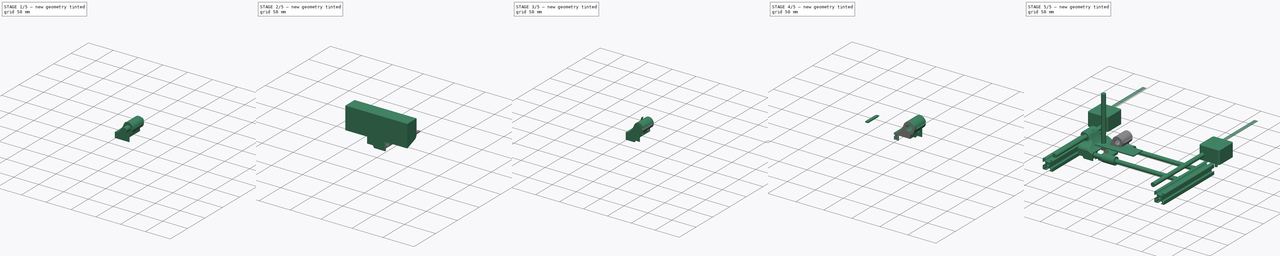
[diagram: build sequence overview — one tinted view per stage of 5, left to right]
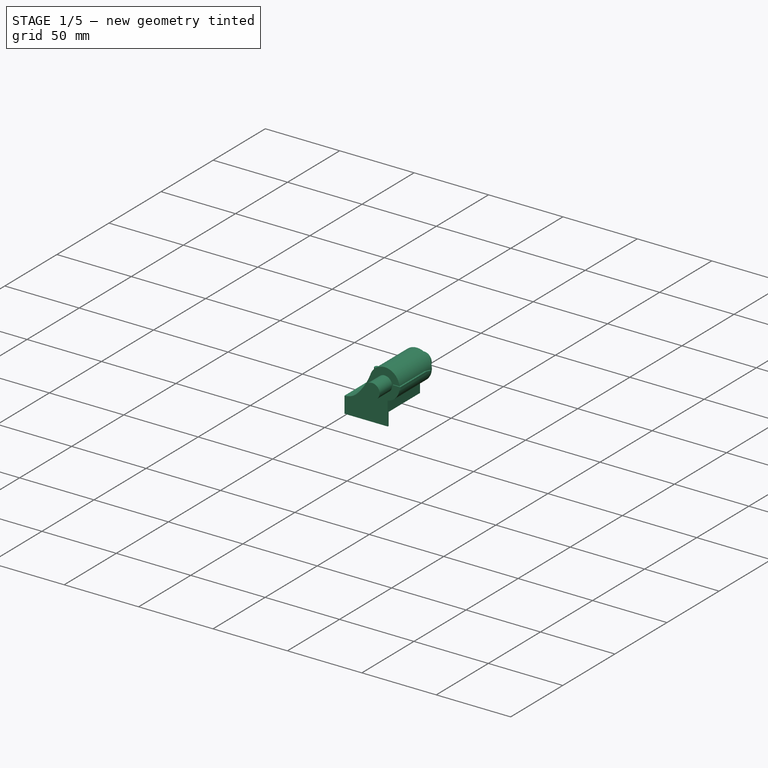
[diagram: stage 1 of 5 — iso view after this stage's code; geometry added in this stage tinted green]
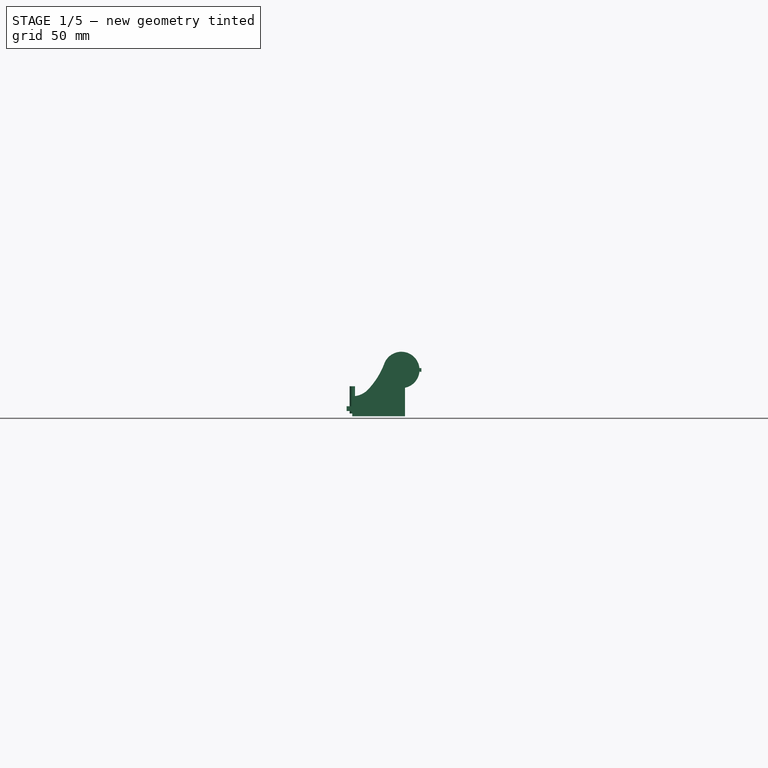
[diagram: stage 1 of 5 — front view after this stage's code; geometry added in this stage tinted green]
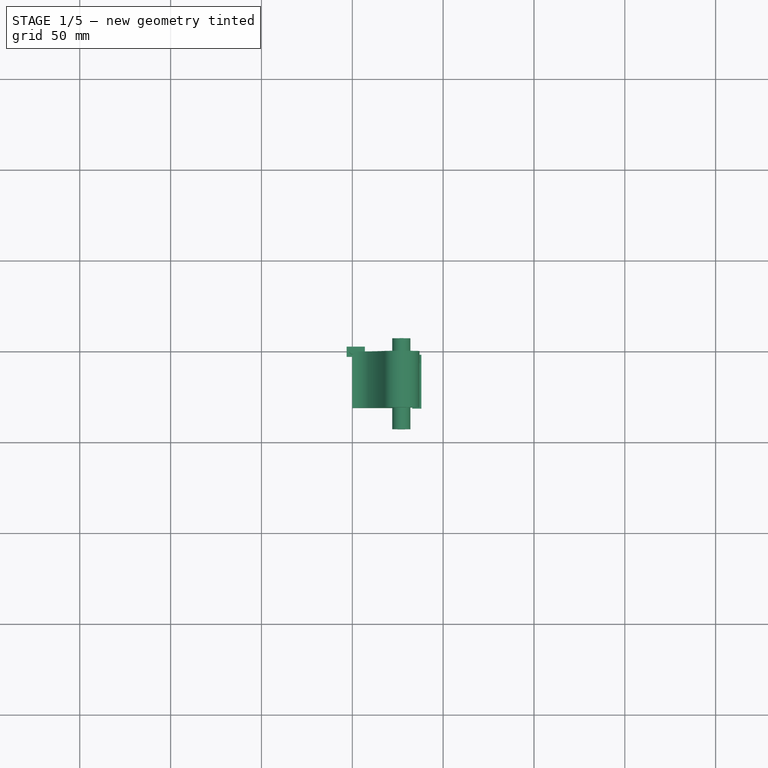
[diagram: stage 1 of 5 — top view after this stage's code; geometry added in this stage tinted green]
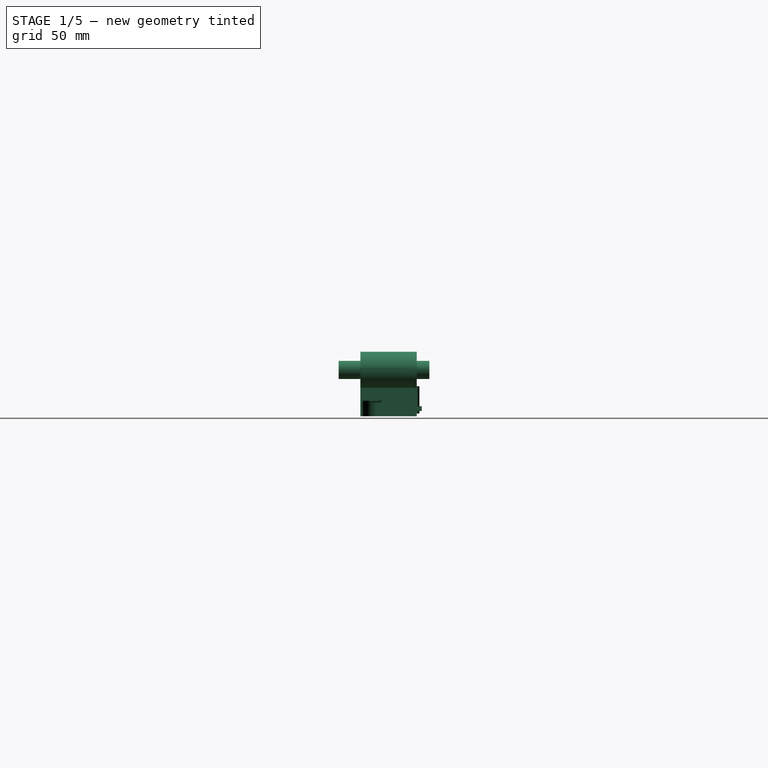
[diagram: stage 1 of 5 — right view after this stage's code; geometry added in this stage tinted green]
FCSTD DOCUMENT  (FreeCAD 0.16R6698 (Git))
Label: Ycarriage
License: All rights reserved
LicenseURL: http://en.wikipedia.org/wiki/All_rights_reserved
objects: Part::Feature×27, Part::Cut×12, Sketcher::SketchObject×11, Part::FeaturePython×10, Part::Mirroring×5, PartDesign::Pad×4, Part::Chamfer×4, Part::Extrusion×4, App::DocumentObjectGroup×4, Part::Offset×3, Part::MultiFuse×3, PartDesign::Pocket×3, Part::Cylinder×3, Part::Compound×2, Part::Fillet×2, Part::Box×1, Spreadsheet::Sheet×1
note: 101 computed .brp shape members not serialized (recipe doc carries the construction recipe); baked Part::Feature solids carry a one-line shape summary decoded from their .brp

FEATURE [Part::Feature] Part__Mirroring002001  label="4018X SNGL (Mirror #3)001"
  shape: bbox 40.13 x 132.8 x 41.15 mm, 30 faces (baked)
FEATURE [Part::Feature] Part__Mirroring009001  label="T slot extrusion 20x20x140.001 (Mirror #2)001"
  shape: bbox 20 x 140 x 20 mm, 51 faces (baked)
FEATURE [Part::Feature] Part__Mirroring004001  label="YBar (Mirror #5)001"
  shape: bbox 8 x 140 x 8 mm, 3 faces (baked)
FEATURE [Part::Feature] Part__Mirroring008001  label="LM8UU001 (Mirror #7)001"
  Placement = pos=(0,30,0) rot=(0,0,1;0rad)
  shape: bbox 15 x 24 x 15 mm, 3 faces (baked)
FEATURE [Part::Feature] Cylinder004001  label="623ZZ001"
  Placement = pos=(-2,30,0) rot=(0,0,1;0rad)
  shape: bbox 10 x 10 x 4 mm, 3 faces (baked)
FEATURE [Part::Feature] Part__Mirroring007001  label="623ZZ (Mirror #8)001"
  Placement = pos=(-2,30,0) rot=(0,0,1;0rad)
  shape: bbox 10 x 10 x 4 mm, 3 faces (baked)
FEATURE [Part::Feature] Cylinder002001  label="LM8UU001"
  Placement = pos=(40,30,0) rot=(0,0,1;0rad)
  shape: bbox 24 x 15 x 15 mm, 3 faces (baked)
FEATURE [Part::Feature] Part__Mirroring006001  label="LM8UU (Mirror #6)001"
  Placement = pos=(40,30,0) rot=(0,0,1;0rad)
  shape: bbox 24 x 15 x 15 mm, 3 faces (baked)
FEATURE [Part::Feature] Box001  label="Sample001"
  Placement = pos=(40,30,0) rot=(0,0,1;0rad)
  shape: bbox 76 x 26 x 2 mm, 6 faces (baked)
FEATURE [Part::Feature] Cylinder001001  label="XBar001"
  Placement = pos=(0,30,0) rot=(0,0,1;0rad)
  shape: bbox 184 x 8 x 8 mm, 3 faces (baked)
FEATURE [Part::Feature] Part__Mirroring003001  label="XBar (Mirror #4)001"
  Placement = pos=(0,30,0) rot=(0,0,1;0rad)
  shape: bbox 184 x 8 x 8 mm, 3 faces (baked)
FEATURE [Sketcher::SketchObject] Sketch  label="Base"
  Placement = pos=(0,0,0) rot=(1,0,0;1.5708rad)
  sketch-geometry (7):
    g0: LineSegment StartX=0 StartY=5.5 StartZ=0 EndX=0 EndY=-5.5 EndZ=0
    g1: LineSegment StartX=0 StartY=-5.5 StartZ=0 EndX=29 EndY=-5.5 EndZ=0
    g2: LineSegment StartX=29 StartY=-5.5 StartZ=0 EndX=29 EndY=10.202 EndZ=0
    g3: ArcOfCircle CenterX=27 CenterY=20 CenterZ=0 NormalX=0 NormalY=0 NormalZ=1 Radius=10 StartAngle=4.91375 EndAngle=9.06324
    g4: GeomPoint [constr] X=0 Y=0 Z=0
    g5: ArcOfCircle CenterX=-22.5738 CenterY=38.7468 CenterZ=0 NormalX=0 NormalY=0 NormalZ=1 Radius=43 StartAngle=5.52806 EndAngle=5.92165
    g6: ArcOfCircle CenterX=0 CenterY=17.5 CenterZ=0 NormalX=0 NormalY=0 NormalZ=1 Radius=12 StartAngle=4.71239 EndAngle=5.52806
  constraints (22):
    c: Coincident(g0,g1)
    c: Coincident(g2,g3)
    c: Vertical(g0)
    c: Horizontal(g1)
    c: PointOnObject(g0,g-2)
    c: DistanceX(g3) = 27
    c: DistanceY(g3) = 20
    c: Radius(g3) = 10
    c: DistanceY(g0) = -11
    c: Symmetric(g0,g0,g4)
    c: PointOnObject(g4,g-1)
    c: Vertical(g2)
    c: Coincident(g2,g1)
    c: DistanceX(g1) = 29
    c: Coincident(g6,g5)
    c: Coincident(g5,g3)
    c: Tangent(g5,g3)
    c: Tangent(g5,g6)
    c: Coincident(g6,g0)
    c: Perpendicular(g6,g0)
    c: Radius(g6) = 12
    c: Radius(g5) = 43
FEATURE [PartDesign::Pad] Pad  label="Base001"
  Length = 31
  Length2 = 100
  Placement = pos=(0,0,0) rot=(1,0,0;1.5708rad)
  Sketch = -> Sketch
  Type = 0
FEATURE [PartDesign::Pad] Pad002  label="M3BoltThread001"
  Length = 15
  Length2 = 100
  Sketch = -> Sketch004
  Type = 0
FEATURE [Part::Box] Box  label="M3NutSlot"
  Height = 2.6
  Length = 10
  Placement = pos=(-3.1,-2.8,-2.6) rot=(0,0,1;0rad)
  Width = 5.6
FEATURE [Part::Offset] Offset  label="M3Clearance"
  Fill = false
  Intersection = false
  Join = 0
  Mode = 0
  Placement = pos=(0,0,-4) rot=(0,0,1;0rad)
  SelfIntersection = false
  Source = -> Pad002
  Value = 0
FEATURE [Part::Offset] Offset001  label="M3NutClearance"
  Fill = false
  Intersection = false
  Join = 0
  Mode = 0
  Placement = pos=(-3.1,-2.8,-2.6) rot=(0,0,1;0rad)
  SelfIntersection = false
  Source = -> Box
  Value = 0
FEATURE [Sketcher::SketchObject] Sketch002  label="PulleyPocket"
  Placement = pos=(0,0,-5.5) rot=(1,0,0;3.14159rad)
  Support = -> Pad [Face2]
  sketch-geometry (5):
    g0: LineSegment StartX=17 StartY=22 StartZ=0 EndX=17 EndY=-6.649 EndZ=0
    g1: LineSegment StartX=17 StartY=-6.649 StartZ=0 EndX=40.092 EndY=-6.649 EndZ=0
    g2: LineSegment StartX=40.092 StartY=-6.649 StartZ=0 EndX=40.092 EndY=30 EndZ=0
    g3: ArcOfCircle CenterX=25 CenterY=22 CenterZ=0 NormalX=0 NormalY=0 NormalZ=1 Radius=8 StartAngle=1.5708 EndAngle=3.1416
    g4: LineSegment StartX=25 StartY=30 StartZ=0 EndX=40.092 EndY=30 EndZ=0
  constraints (14):
    c: Coincident(g0,g1)
    c: Coincident(g1,g2)
    c: Horizontal(g1)
    c: Vertical(g0)
    c: Vertical(g2)
    c: DistanceX(g3) = 25
    c: DistanceY(g3) = 22
    c: Radius(g3) = 8
    c: Coincident(g0,g3)
    c: Tangent(g3,g0)
    c: Coincident(g4,g2)
    c: Horizontal(g4)
    c: Coincident(g3,g4)
    c: Tangent(g3,g4)
FEATURE [PartDesign::Pocket] Pocket  label="PulleyPocket001"
  Length = 8.5
  Placement = pos=(0,0,0) rot=(1,0,0;1.5708rad)
  Sketch = -> Sketch002
  Type = 0
FEATURE [Sketcher::SketchObject] Sketch003  label="BearingPad"
  Placement = pos=(0,0,3) rot=(1,0,0;3.14159rad)
  Support = -> Pocket [Face11]
  sketch-geometry (1):
    g0: Circle CenterX=25 CenterY=22 CenterZ=0 NormalX=0 NormalY=0 NormalZ=1 Radius=3
  constraints (3):
    c: DistanceX(g0) = 25
    c: DistanceY(g0) = 22
    c: Radius(g0) = 3
FEATURE [PartDesign::Pad] Pad003  label="BearingPad001"
  Length = 1
  Length2 = 100
  Placement = pos=(0,0,0) rot=(1,0,0;1.5708rad)
  Sketch = -> Sketch003
  Type = 0
FEATURE [Part::Chamfer] Chamfer  label="PrintableChamfer"
  Base = -> Pad003
  Edges = 1 edges r=0.98: [Edge33]
FEATURE [Part::Cylinder] Cylinder004003  label="YRodLane"
  Angle = 360
  Height = 50
  Placement = pos=(27,7,20) rot=(1,0,0;1.5708rad)
  Radius = 5
FEATURE [Sketcher::SketchObject] Sketch018  label="BearingSlit"
  sketch-geometry (5):
    g0: LineSegment StartX=0 StartY=0 StartZ=0 EndX=-1 EndY=5 EndZ=0
    g1: LineSegment StartX=-1 StartY=5 StartZ=0 EndX=-1 EndY=29.6643 EndZ=0
    g2: LineSegment StartX=-1 StartY=29.6643 StartZ=0 EndX=1 EndY=29.6643 EndZ=0
    g3: LineSegment StartX=1 StartY=29.6643 StartZ=0 EndX=1 EndY=5 EndZ=0
    g4: LineSegment StartX=1 StartY=5 StartZ=0 EndX=0 EndY=0 EndZ=0
  constraints (11):
    c: Coincident(g0,g1)
    c: Coincident(g1,g2)
    c: Coincident(g2,g3)
    c: Coincident(g3,g4)
    c: Coincident(g0,g4)
    c: Symmetric(g0,g3,g-2)
    c: Coincident(g0,g-1)
    c: Symmetric(g1,g2,g-2)
    c: Vertical(g3)
    c: DistanceX(g2,g2) = 2
    c: DistanceY(g0) = 5
FEATURE [Part::Extrusion] Extrude003  label="BearingSlit001"
  Base = -> Sketch018
  Dir = (0,0,5)
  Solid = true
FEATURE [App::DocumentObjectGroup] Group003  label="Right_src"
  Group = -> [Chamfer003,Fusion001003002,Cut007007002]
FEATURE [Part::FeaturePython] Clone011  label="Clone of BearingSlit002"  # Draft clone (typed FeaturePython)
  Objects = -> [Extrude003]
  Placement = pos=(38,-2,20) rot=(-0.707107,0,0.707107;3.14159rad)
  Scale = (1,1,1)
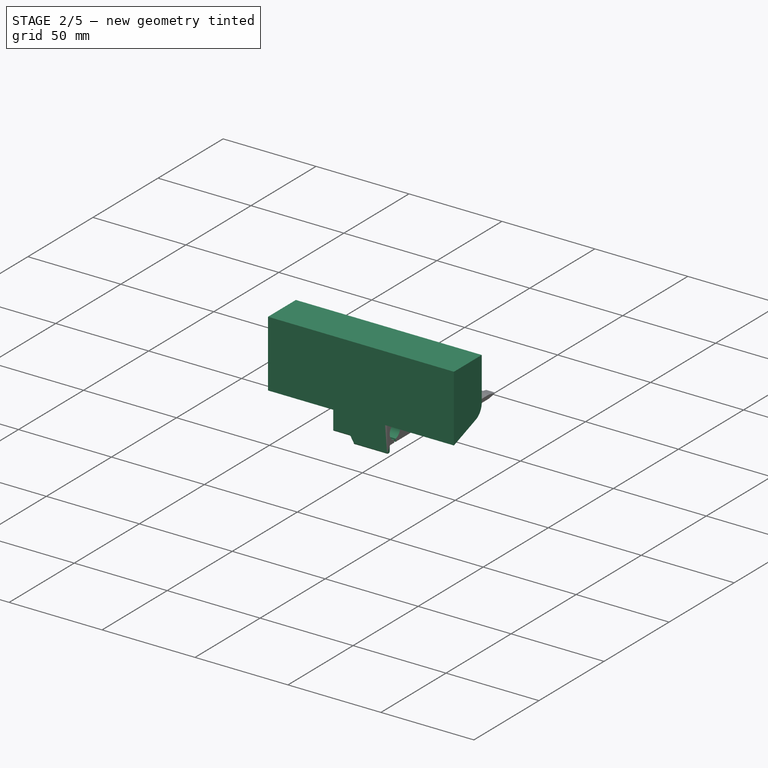
[diagram: stage 2 of 5 — iso view after this stage's code; geometry added in this stage tinted green]
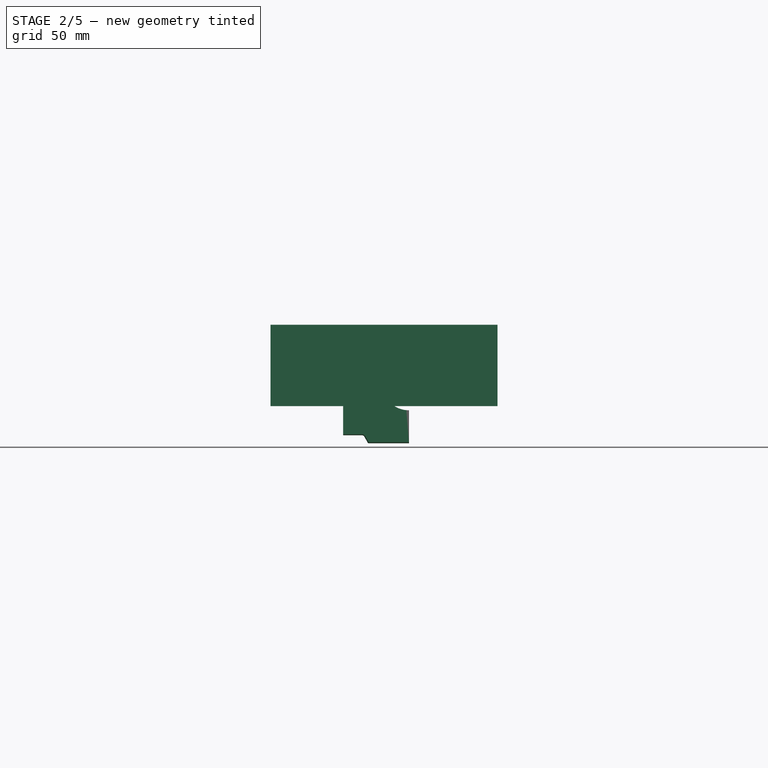
[diagram: stage 2 of 5 — front view after this stage's code; geometry added in this stage tinted green]
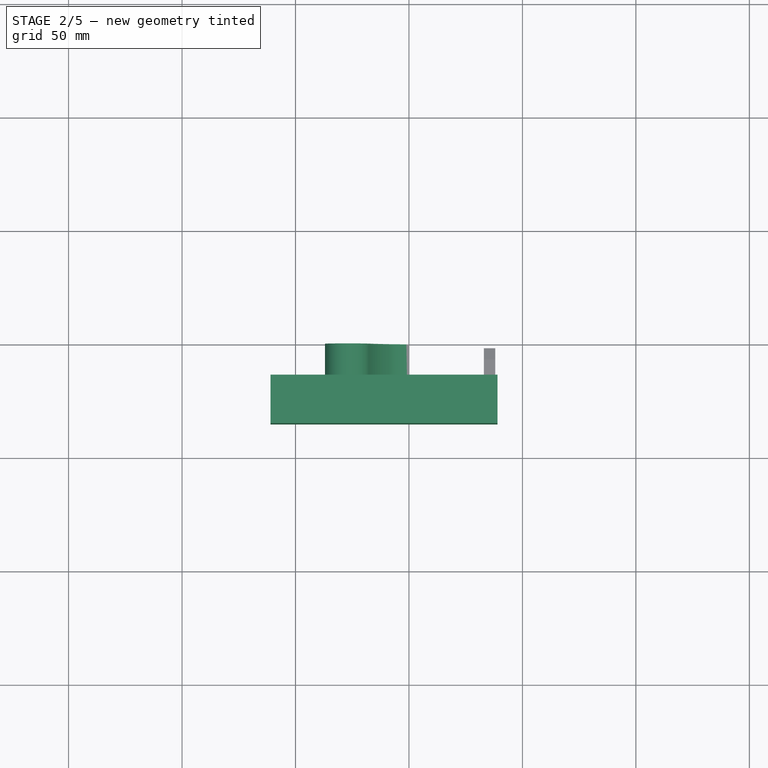
[diagram: stage 2 of 5 — top view after this stage's code; geometry added in this stage tinted green]
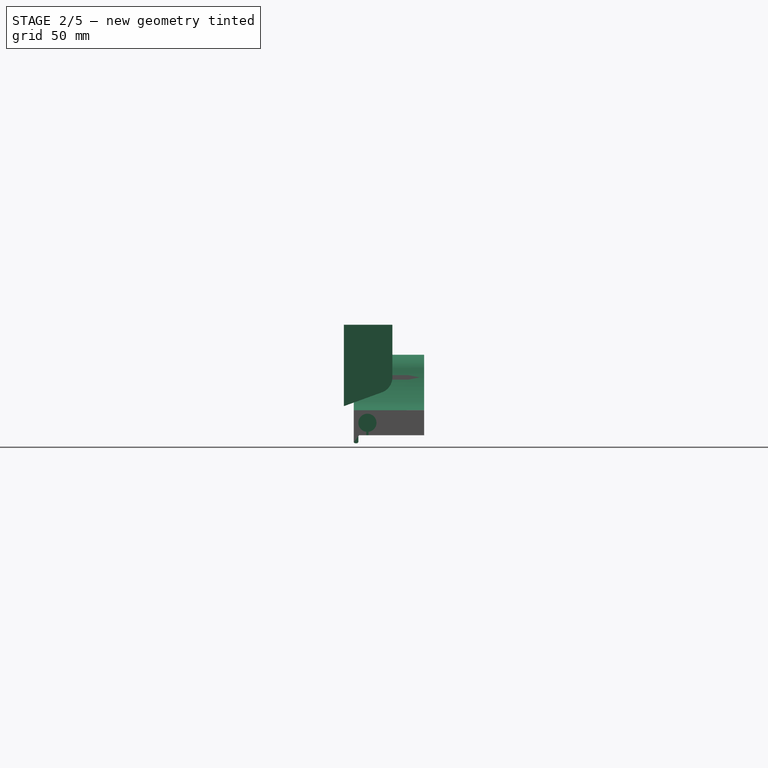
[diagram: stage 2 of 5 — right view after this stage's code; geometry added in this stage tinted green]
FEATURE [Part::MultiFuse] Fusion  label="M3NutAndBolt"
  Shapes = -> [Offset001,Offset]
FEATURE [Part::FeaturePython] Clone  label="Clone of M3NutAndBolt"  # Draft clone (typed FeaturePython)
  Objects = -> [Fusion]
  Placement = pos=(25,-22,5) rot=(1,0,0;3.14159rad)
  Scale = (1,1,1)
FEATURE [Part::Cut] Cut  label="BearingBoltCut"
  Base = -> Chamfer
  Tool = -> Clone
FEATURE [Part::Extrusion] Extrude  label="SideCut001"
  Base = -> Sketch001
  Dir = (100,0,0)
  Placement = pos=(-61,0,0) rot=(0,0,1;0rad)
  Solid = true
FEATURE [Sketcher::SketchObject] Sketch015  label="SmoothRodCut"
  expr: Constraints[10] = Params.SmRodSlit
  expr: Constraints[8] = 4 + Params.SmRodClear
  sketch-geometry (4):
    g0: ArcOfCircle CenterX=0 CenterY=0 CenterZ=0 NormalX=0 NormalY=0 NormalZ=1 Radius=4 StartAngle=1.69612 EndAngle=7.72865
    g1: LineSegment StartX=-0.5 StartY=3.96863 StartZ=0 EndX=-0.5 EndY=12.0122 EndZ=0
    g2: LineSegment StartX=-0.5 StartY=12.0122 StartZ=0 EndX=0.5 EndY=12.0122 EndZ=0
    g3: LineSegment StartX=0.5 StartY=12.0122 StartZ=0 EndX=0.5 EndY=3.96863 EndZ=0
  constraints (11):
    c: Coincident(g1,g2)
    c: Coincident(g2,g3)
    c: Coincident(g1,g0)
    c: Coincident(g0,g3)
    c: Vertical(g3)
    c: Vertical(g1)
    c: Horizontal(g2)
    c: Coincident(g0,g-1)
    c: Radius(g0) = 4
    c: Symmetric(g1,g2,g-2)
    c: DistanceX(g2,g2) = 1
FEATURE [Spreadsheet::Sheet] Spreadsheet  label="Params"
  cells = A1=Smooth Rod Clearance; B1(SmRodClear)=0; A2=Smooth Rod Slit; B2(SmRodSlit)=1; A3=M3 Thread Tolerance; B3(M3Tol)=0; A4=M3 Nut Tolerances; B4(M3NutThickTol)=0; C4(M3NutWidthTol)=0
FEATURE [Part::Extrusion] Extrude001  label="SmRodCut"
  Base = -> Sketch015
  Dir = (0,0,40)
  Solid = true
FEATURE [Part::FeaturePython] Clone007  label="Clone of SmRodCut"  # Draft clone (typed FeaturePython)
  Objects = -> [Extrude001]
  Placement = pos=(16,-25,0) rot=(-0.57735,-0.57735,0.57735;2.0944rad)
  Scale = (1,1,1)
FEATURE [Sketcher::SketchObject] Sketch016  label="EndstopHit"
  Placement = pos=(0,-31,0) rot=(1,0,0;1.5708rad)
  Support = -> Cut [Face16]
  sketch-geometry (5):
    g0: LineSegment StartX=0 StartY=-9 StartZ=0 EndX=18 EndY=-9 EndZ=0
    g1: LineSegment StartX=18 StartY=-9 StartZ=0 EndX=20.3094 EndY=-5 EndZ=0
    g2: LineSegment StartX=0 StartY=-5 StartZ=0 EndX=0 EndY=-9 EndZ=0
    g3: LineSegment [constr] StartX=12 StartY=-9 StartZ=0 EndX=12 EndY=-3.13146 EndZ=0
    g4: LineSegment StartX=0 StartY=-5 StartZ=0 EndX=20.3094 EndY=-5 EndZ=0
  constraints (15):
    c: Coincident(g0,g1)
    c: Coincident(g2,g0)
    c: Horizontal(g0)
    c: PointOnObject(g3,g0)
    c: Angle(g1,g2) = 0.523599
    c: DistanceX(g3) = 12
    c: Vertical(g2)
    c: PointOnObject(g2,g-2)
    c: Vertical(g3)
    c: Horizontal(g4)
    c: Coincident(g4,g2)
    c: Coincident(g4,g1)
    c: DistanceY(g0) = -9
    c: DistanceY(g2) = -5
    c: DistanceX(g0) = 18
FEATURE [PartDesign::Pad] Pad004  label="EndstopHit001"
  Length = 2
  Length2 = 100
  Reversed = true
  Sketch = -> Sketch016
  Type = 0
FEATURE [Part::Chamfer] Chamfer004  label="NiceChamfer"
  Base = -> Pad004
  Edges = 7 edges r=0.4: [Edge3,Edge4,Edge5,Edge6,Edge7,Edge8,Edge15]
FEATURE [Part::Cut] Cut007002  label="SmRodCut001"
  Base = -> Chamfer004
  Tool = -> Clone007
FEATURE [Part::Cut] Cut007003  label="YRodLane001"
  Base = -> Cut007002
  Tool = -> Cylinder004003
FEATURE [Part::Mirroring] Part__Mirroring009006004  label="RightStart"
  Base = (0,0,0)
  Normal = (1,0,0)
  Source = -> Cut007003
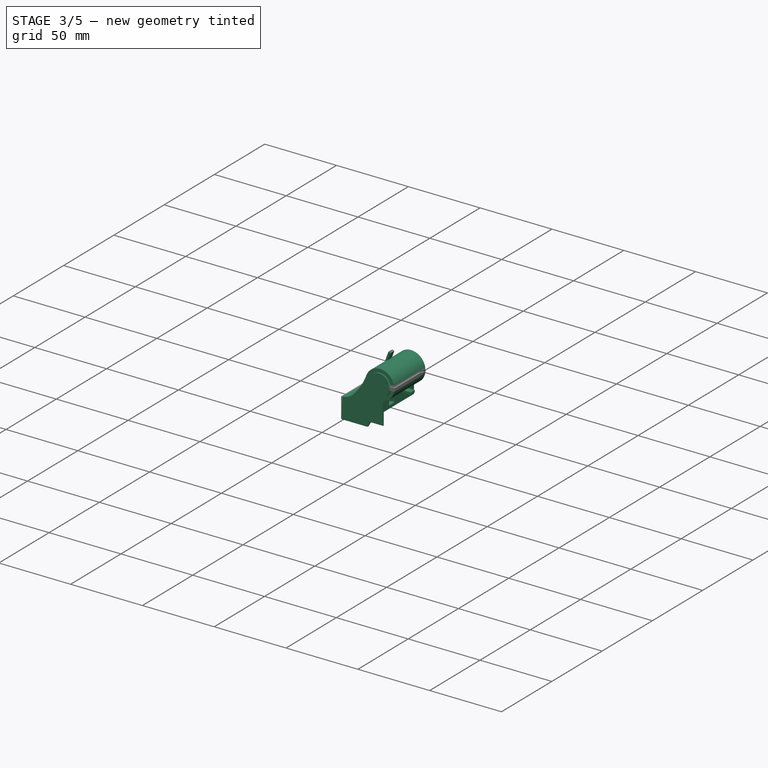
[diagram: stage 3 of 5 — iso view after this stage's code; geometry added in this stage tinted green]
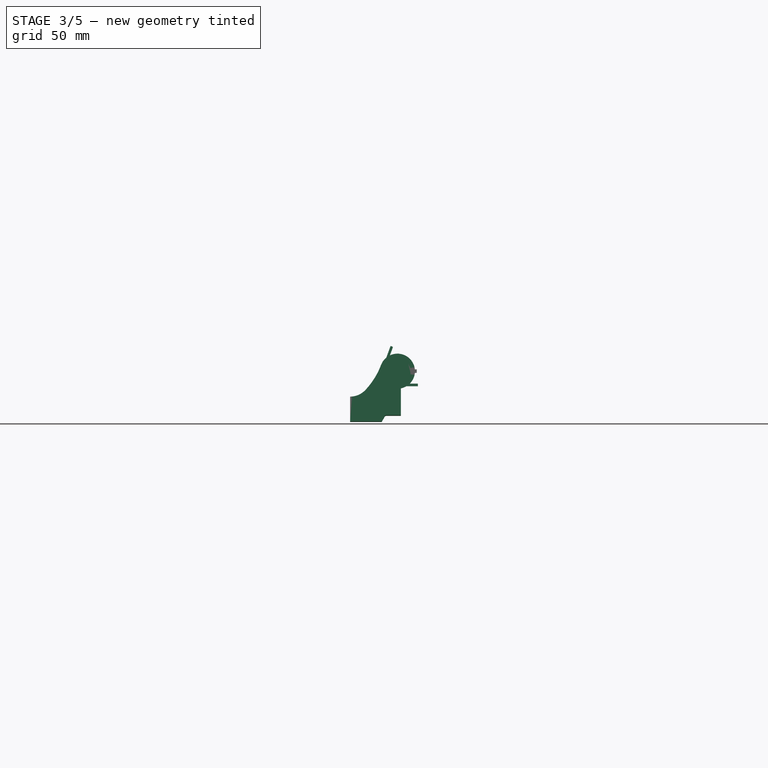
[diagram: stage 3 of 5 — front view after this stage's code; geometry added in this stage tinted green]
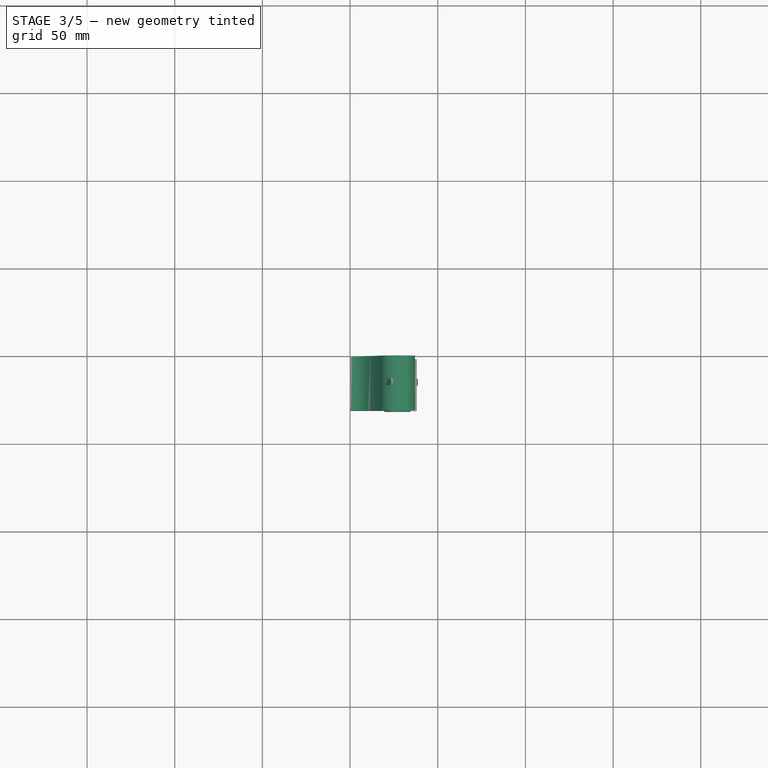
[diagram: stage 3 of 5 — top view after this stage's code; geometry added in this stage tinted green]
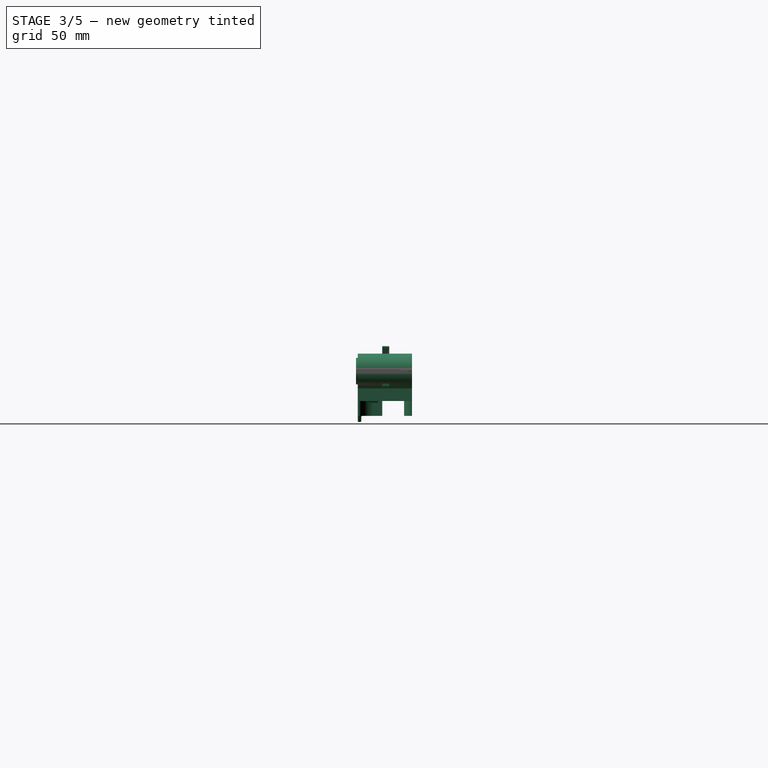
[diagram: stage 3 of 5 — right view after this stage's code; geometry added in this stage tinted green]
FEATURE [Part::Cylinder] Cylinder  label="LM8UUDrill"
  Angle = 360
  Height = 30
  Radius = 7.55
FEATURE [Part::Offset] Offset002  label="LM8UUClearance"
  Fill = false
  Intersection = false
  Join = 0
  Mode = 0
  SelfIntersection = false
  Source = -> Cylinder
  Value = 0
FEATURE [Part::FeaturePython] Clone003  label="Clone of LM8UUClearance"  # Draft clone (typed FeaturePython)
  Objects = -> [Offset002]
  Placement = pos=(27,-2,20) rot=(1,0,0;1.5708rad)
  Scale = (1,1,1)
FEATURE [App::DocumentObjectGroup] Group  label="Base_src"
  Group = -> [Pad,Pocket,Cut007002,Pad004,Cut,Cut007003]
FEATURE [Sketcher::SketchObject] Sketch011  label="LStringLane"
  Placement = pos=(0,0,-5.5) rot=(1,0,0;3.14159rad)
  Support = -> Cut007003 [Face8]
  sketch-geometry (7):
    g0: LineSegment StartX=-5.17914 StartY=4.5 StartZ=0 EndX=-5.17914 EndY=17 EndZ=0
    g1: LineSegment StartX=-5.17914 StartY=17 StartZ=0 EndX=19.3705 EndY=17 EndZ=0
    g2: LineSegment StartX=-5.17914 StartY=4.5 StartZ=0 EndX=3.50002 EndY=4.5 EndZ=0
    g3: LineSegment StartX=8 StartY=0 StartZ=0 EndX=8 EndY=-3.63639 EndZ=0
    g4: LineSegment StartX=8 StartY=-3.63639 StartZ=0 EndX=19.3705 EndY=-3.63639 EndZ=0
    g5: LineSegment StartX=19.3705 StartY=-3.63639 StartZ=0 EndX=19.3705 EndY=17 EndZ=0
    g6: ArcOfCircle CenterX=3.5 CenterY=0 CenterZ=0 NormalX=0 NormalY=0 NormalZ=1 Radius=4.5 StartAngle=0 EndAngle=1.57079
  constraints (19):
    c: Coincident(g0,g1)
    c: Coincident(g3,g4)
    c: Coincident(g4,g5)
    c: Coincident(g1,g5)
    c: Vertical(g5)
    c: Horizontal(g1)
    c: Horizontal(g4)
    c: Horizontal(g2)
    c: Vertical(g0)
    c: Vertical(g3)
    c: Coincident(g2,g0)
    c: Coincident(g2,g6)
    c: PointOnObject(g6,g-1)
    c: Tangent(g6,g2)
    c: Coincident(g6,g3)
    c: DistanceX(g6) = 3.5
    c: Radius(g6) = 4.5
    c: DistanceY(g0) = 17
    c: PointOnObject(g3,g-1)
FEATURE [PartDesign::Pocket] Pocket008002  label="LStringLane001"
  Length = 8.5
  Sketch = -> Sketch011
  Type = 0
  UpToFace = -> Cut [Face20]
FEATURE [Part::Cut] Cut005  label="SideCut002"
  Base = -> Part__Mirroring009006004
  Tool = -> Extrude
FEATURE [Part::Chamfer] Chamfer003  label="NiceChamfer001"
  Base = -> Cut005
  Edges = 4 edges r=2: [Edge52,Edge53,Edge55,Edge81]
FEATURE [Sketcher::SketchObject] Sketch014  label="RLowerCavity"
  Placement = pos=(0,0,-5.5) rot=(1,0,0;3.14159rad)
  Support = -> Chamfer003 [Face6]
  sketch-geometry (4):
    g0: LineSegment StartX=4.42462 StartY=17 StartZ=0 EndX=-18.7248 EndY=17 EndZ=0
    g1: LineSegment StartX=-18.7248 StartY=17 StartZ=0 EndX=-18.7248 EndY=-6.05435 EndZ=0
    g2: LineSegment StartX=-18.7248 StartY=-6.05435 StartZ=0 EndX=4.42462 EndY=-6.05435 EndZ=0
    g3: LineSegment StartX=4.42462 StartY=-6.05435 StartZ=0 EndX=4.42462 EndY=17 EndZ=0
  constraints (9):
    c: Coincident(g0,g1)
    c: Coincident(g1,g2)
    c: Coincident(g2,g3)
    c: Coincident(g3,g0)
    c: Horizontal(g0)
    c: Horizontal(g2)
    c: Vertical(g1)
    c: Vertical(g3)
    c: DistanceY(g0) = 17
FEATURE [PartDesign::Pocket] Pocket008004  label="RLowerCavity001"
  Length = 8.5
  Sketch = -> Sketch014
  Type = 0
FEATURE [Part::Fillet] Fillet001  label="NiceFillet"
  Base = -> Pocket008004
  Edges = 3 edges r=2: [Edge59,Edge60,Edge94]
FEATURE [Sketcher::SketchObject] Sketch017  label="TieSlot"
  Placement = pos=(0,0,0) rot=(0,0.707107,0.707107;3.14159rad)
  Support = -> Fillet001 [Face7]
  sketch-geometry (8):
    g0: ArcOfCircle CenterX=27 CenterY=20 CenterZ=0 NormalX=0 NormalY=0 NormalZ=1 Radius=7.1 StartAngle=2.79253 EndAngle=4.71238
    g1: ArcOfCircle CenterX=27 CenterY=20 CenterZ=0 NormalX=0 NormalY=0 NormalZ=1 Radius=8.6 StartAngle=2.79253 EndAngle=4.71239
    g2: LineSegment StartX=18.9186 StartY=22.9414 StartZ=0 EndX=23.0774 EndY=34.3676 EndZ=0
    g3: LineSegment StartX=23.0774 StartY=34.3676 StartZ=0 EndX=24.487 EndY=33.8545 EndZ=0
    g4: LineSegment StartX=24.487 StartY=33.8545 StartZ=0 EndX=20.3282 EndY=22.4283 EndZ=0
    g5: LineSegment StartX=27 StartY=12.9 StartZ=0 EndX=38.6808 EndY=12.9 EndZ=0
    g6: LineSegment StartX=38.6808 StartY=12.9 StartZ=0 EndX=38.6808 EndY=11.4 EndZ=0
    g7: LineSegment StartX=38.6808 StartY=11.4 StartZ=0 EndX=27 EndY=11.4 EndZ=0
  constraints (23):
    c: Coincident(g0,g1)
    c: DistanceY(g0) = 20
    c: DistanceX(g0) = 27
    c: Coincident(g2,g3)
    c: Coincident(g3,g4)
    c: Coincident(g5,g6)
    c: Coincident(g6,g7)
    c: Coincident(g2,g1)
    c: Coincident(g4,g0)
    c: Coincident(g5,g0)
    c: Coincident(g7,g1)
    c: Perpendicular(g6,g7)
    c: Perpendicular(g6,g5)
    c: Perpendicular(g3,g2)
    c: Perpendicular(g4,g3)
    c: Tangent(g2,g1)
    c: Tangent(g4,g0)
    c: Tangent(g5,g0)
    c: Tangent(g7,g1)
    c: Distance(g6) = 1.5
    c: Angle(g5) = 0
    c: Radius(g0) = 7.1
    c: Angle(g4) = -1.91986
FEATURE [Part::Extrusion] Extrude002  label="TieSlot001"
  Base = -> Sketch017
  Dir = (0,4,0)
  Placement = pos=(0,-2,0) rot=(0,0,1;0rad)
  Solid = true
FEATURE [Part::Mirroring] Part__Mirroring  label="TieSlot001 (Mirror #4)"
  Base = (0,0,0)
  Normal = (1,0,0)
  Source = -> Extrude002
FEATURE [Part::FeaturePython] Clone009  label="Clone of TieSlot001 (Mirror #4)"  # Draft clone (typed FeaturePython)
  Objects = -> [Part__Mirroring]
  Placement = pos=(0,-15,0) rot=(0,0,1;0rad)
  Scale = (1,1,1)
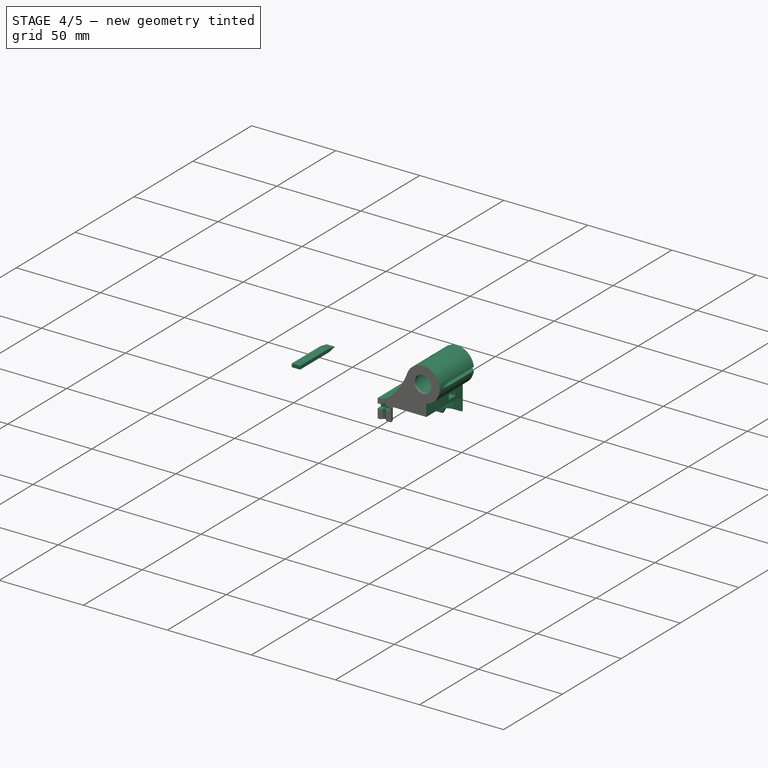
[diagram: stage 4 of 5 — iso view after this stage's code; geometry added in this stage tinted green]
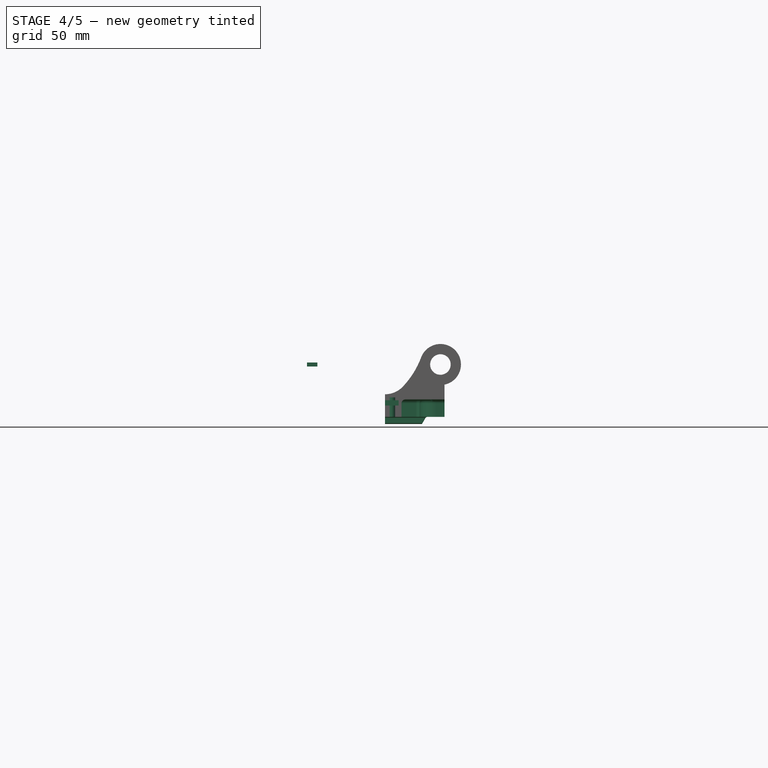
[diagram: stage 4 of 5 — front view after this stage's code; geometry added in this stage tinted green]
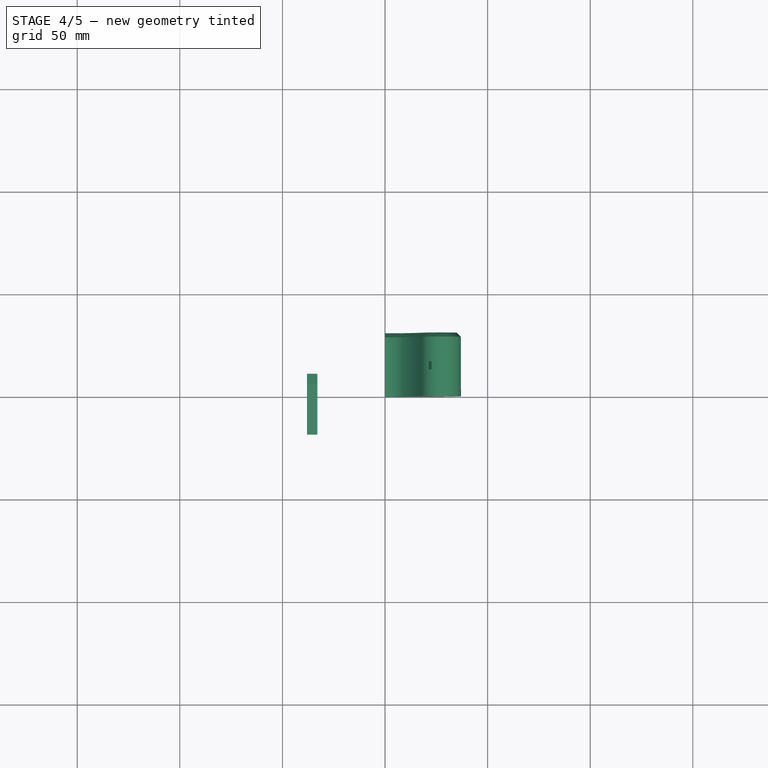
[diagram: stage 4 of 5 — top view after this stage's code; geometry added in this stage tinted green]
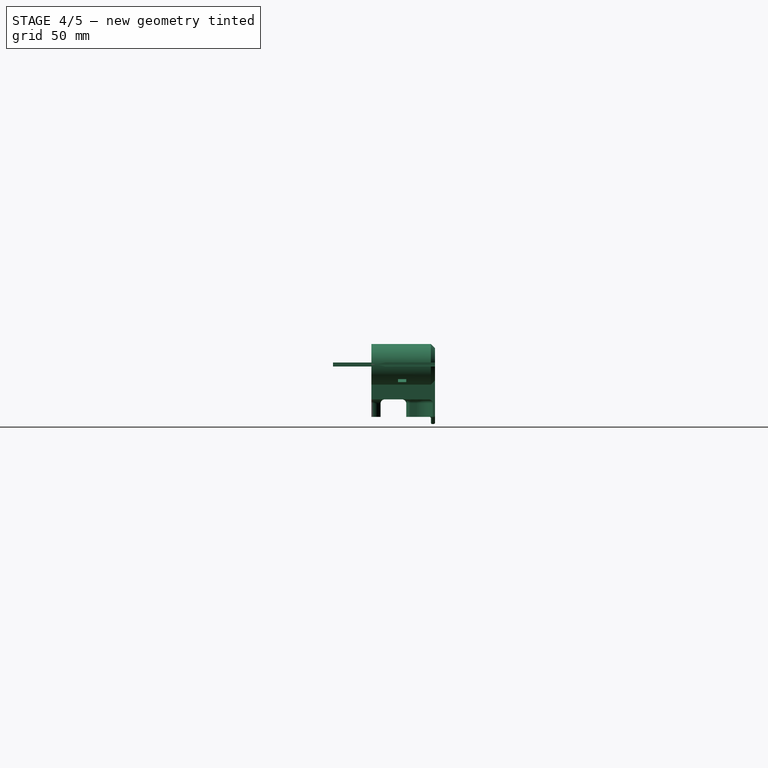
[diagram: stage 4 of 5 — right view after this stage's code; geometry added in this stage tinted green]
FEATURE [Part::FeaturePython] Clone001  label="Clone of M3NutAndBolt001"  # Draft clone (typed FeaturePython)
  Objects = -> [Fusion]
  Placement = pos=(3.5,0,0) rot=(0,1,0;3.14159rad)
  Scale = (1,1,1)
FEATURE [Part::FeaturePython] Clone002  label="Clone of M3NutAndBolt002"  # Draft clone (typed FeaturePython)
  Objects = -> [Fusion]
  Placement = pos=(3.5,-19,-7) rot=(0,0,1;0rad)
  Scale = (1,1,1)
FEATURE [Part::Fillet] Fillet
  Base = -> Pocket008002
  Edges = 4 edges r=2: [Edge54,Edge55,Edge84,Edge95]
FEATURE [Part::Cut] Cut001  label="LLM8UUCut"
  Base = -> Fillet
  Tool = -> Clone003
FEATURE [Part::Cut] Cut002
  Base = -> Cut001
  Tool = -> Clone002
FEATURE [Part::Cut] Cut003  label="EndstopBoltCuts"
  Base = -> Cut002
  Tool = -> Clone001
FEATURE [Part::Chamfer] Chamfer005  label="LNiceChamfer"
  Base = -> Cut003
  Edges = 1 edges r=2: [Edge69]
FEATURE [Part::Cut] Cut007008  label="LTieCut"
  Base = -> Chamfer005
  Tool = -> Clone009
FEATURE [App::DocumentObjectGroup] Group001  label="Components_src"
  Group = -> [Fusion,Cylinder,Offset002,Extrude001,Cylinder004002,Part__Mirroring,Extrude003]
FEATURE [Part::FeaturePython] Clone010  label="Clone of BearingSlit001"  # Draft clone (typed FeaturePython)
  Objects = -> [Extrude003]
  Placement = pos=(-33,11,20) rot=(0.707107,0,-0.707107;3.14159rad)
  Scale = (1,1,1)
FEATURE [Part::Cut] Cut007007003  label="BearingSlitCut001"
  Base = -> Cut007008
  Tool = -> Clone011
FEATURE [Part::Mirroring] Part__Mirroring009006006  label="BearingSlitCut001 (Mirror #5)"
  Base = (0,0,0)
  Normal = (0,1,0)
  Source = -> Cut007007003
FEATURE [Part::MultiFuse] Fusion001003005002  label="LMirroring"
  Shapes = -> [Cut007007003,Part__Mirroring009006006]
FEATURE [App::DocumentObjectGroup] Group002  label="Left_src"
  Group = -> [Chamfer004,Fusion001003005002]
FEATURE [Part::Feature] Fusion001003005002001  label="LYCarriage"
  shape: bbox 37 x 62 x 39 mm, 139 faces (baked)
FEATURE [Part::Feature] Cut007007002001  label="RYCarriage"
  shape: bbox 42.16 x 79 x 42.08 mm, 125 faces (baked)
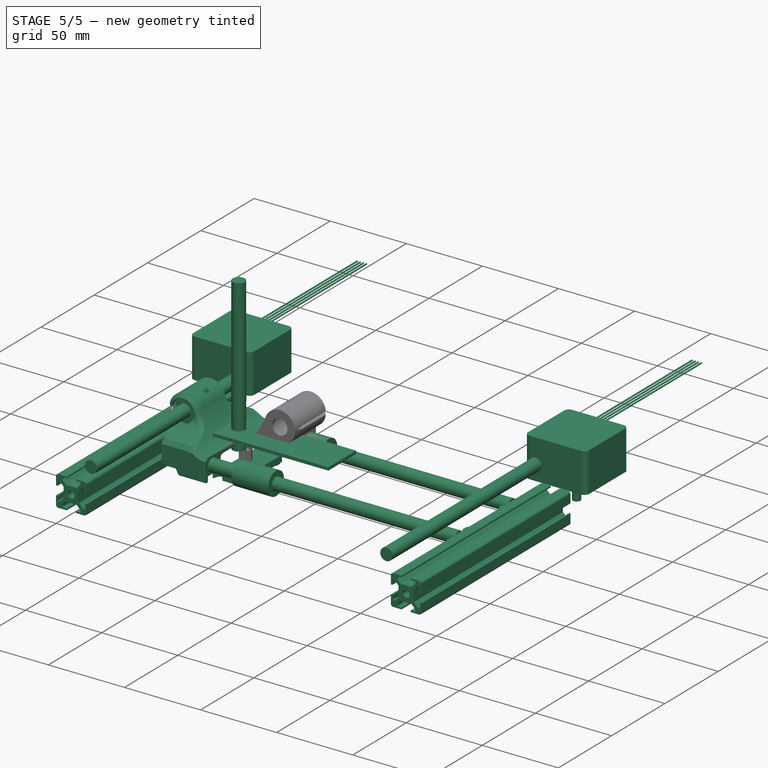
[diagram: stage 5 of 5 — iso view after this stage's code; geometry added in this stage tinted green]
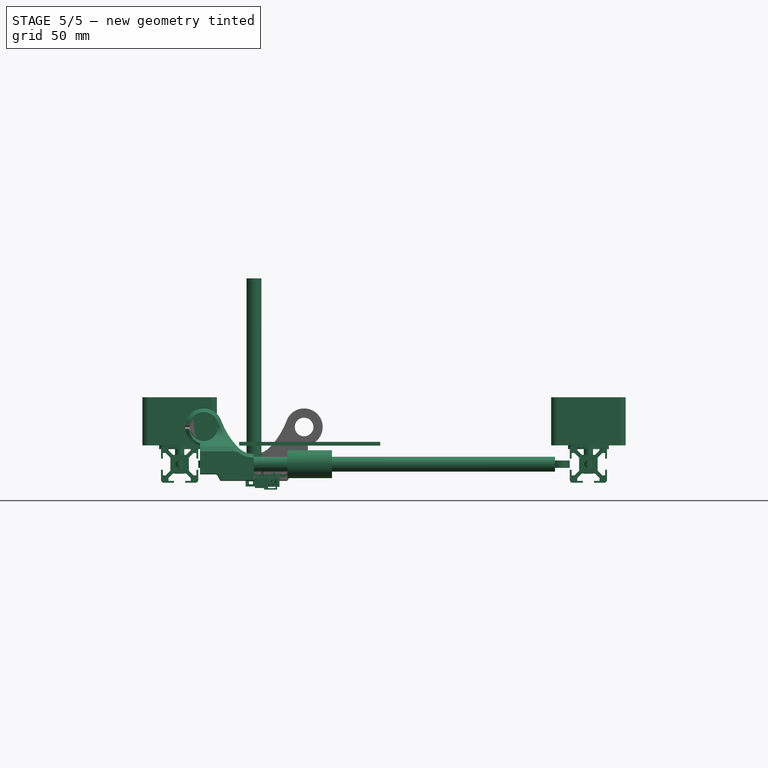
[diagram: stage 5 of 5 — front view after this stage's code; geometry added in this stage tinted green]
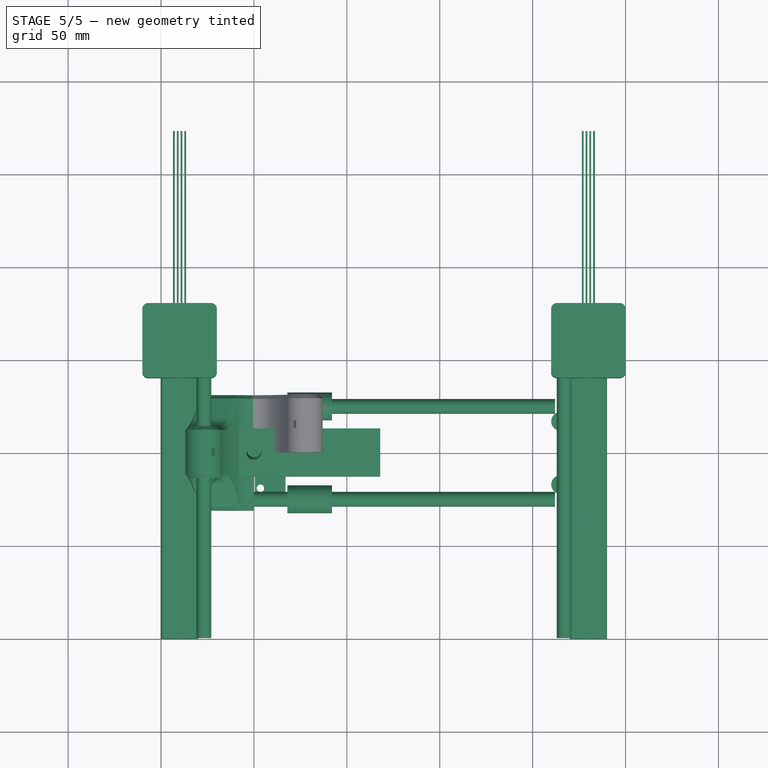
[diagram: stage 5 of 5 — top view after this stage's code; geometry added in this stage tinted green]
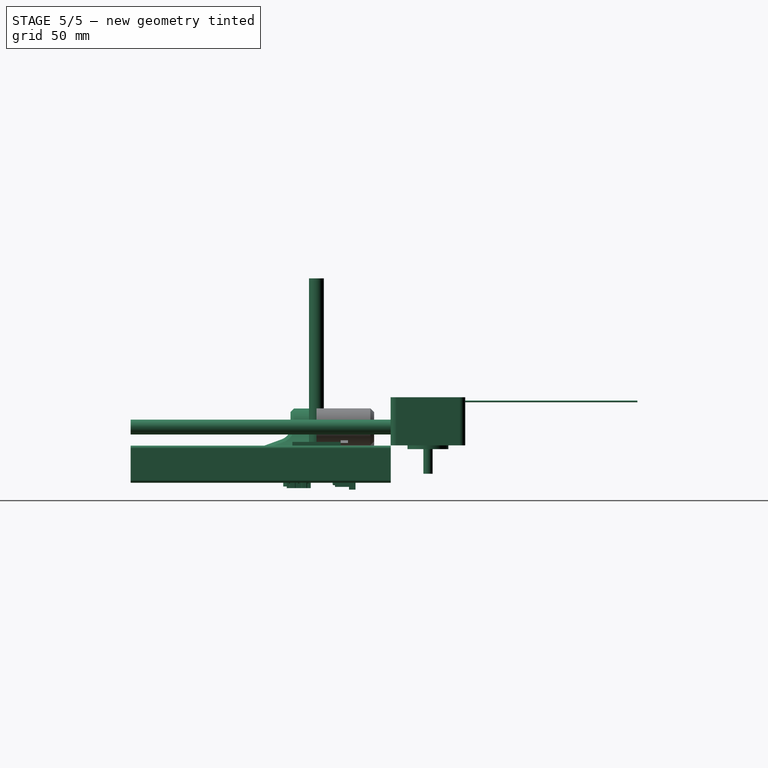
[diagram: stage 5 of 5 — right view after this stage's code; geometry added in this stage tinted green]
FEATURE [Sketcher::SketchObject] Sketch001  label="SideCut"
  Placement = pos=(0,0,0) rot=(0.707107,0,-0.707107;3.14159rad)
  sketch-geometry (6):
    g0: GeomPoint [constr] X=-30 Y=14 Z=0
    g1: ArcOfCircle CenterX=-20 CenterY=21 CenterZ=0 NormalX=0 NormalY=0 NormalZ=1 Radius=7 StartAngle=4.71239 EndAngle=5.93412
    g2: LineSegment StartX=-20 StartY=14 StartZ=0 EndX=-43.1703 EndY=14 EndZ=0
    g3: LineSegment StartX=-13.4222 StartY=18.6058 StartZ=0 EndX=-7.32195 EndY=35.3661 EndZ=0
    g4: LineSegment StartX=-43.1703 StartY=14 StartZ=0 EndX=-43.1703 EndY=35.3661 EndZ=0
    g5: LineSegment StartX=-43.1703 StartY=35.3661 StartZ=0 EndX=-7.32195 EndY=35.3661 EndZ=0
  constraints (16):
    c: DistanceX(g0) = -30
    c: DistanceY(g0) = 14
    c: Horizontal(g2)
    c: Tangent(g1,g2)
    c: Coincident(g3,g1)
    c: Tangent(g3,g1)
    c: Coincident(g4,g5)
    c: Coincident(g4,g2)
    c: Coincident(g5,g3)
    c: Horizontal(g5)
    c: Vertical(g4)
    c: Coincident(g2,g1)
    c: PointOnObject(g0,g2)
    c: Angle(g3) = 1.22173
    c: DistanceX(g0,g1) = 10
    c: Radius(g1) = 7
FEATURE [Sketcher::SketchObject] Sketch004  label="M3BoltThread"
  sketch-geometry (1):
    g0: Circle CenterX=0 CenterY=0 CenterZ=0 NormalX=0 NormalY=0 NormalZ=1 Radius=1.5
  constraints (2):
    c: Radius(g0) = 1.5
    c: Coincident(g0,g-1)
FEATURE [Part::Feature] Part__Mirroring009006001  label="623ZZ (Mirror #8)001 (Mirror #6)001"
  Placement = pos=(2,0,0) rot=(0,0,1;0rad)
  shape: bbox 10 x 10 x 4 mm, 3 faces (baked)
FEATURE [Part::Feature] Part__Mirroring009005001  label="623ZZ001 (Mirror #5)001"
  Placement = pos=(2,0,0) rot=(0,0,1;0rad)
  shape: bbox 10 x 10 x 4 mm, 3 faces (baked)
FEATURE [Part::Feature] Part__Mirroring009004001  label="YBar (Mirror #5)001 (Mirror #4)001"
  shape: bbox 8 x 140 x 8 mm, 3 faces (baked)
FEATURE [Part::Feature] Part__Mirroring009003001  label="T slot extrusion 20x20x140.001 (Mirror #2)001 (Mirror #3)001"
  shape: bbox 20 x 140 x 20 mm, 51 faces (baked)
FEATURE [Part::Feature] Part__Mirroring009006002  label="4018X SNGL (Mirror #3)001 (Mirror #2)001"
  shape: bbox 40.13 x 132.8 x 41.15 mm, 30 faces (baked)
FEATURE [Part::Compound] Compound  label="LReference"
  Links = -> [Part__Mirroring003001,Part__Mirroring009003001,Part__Mirroring009001,Part__Mirroring002001,Part__Mirroring004001,Part__Mirroring008001,Cylinder004001,Part__Mirroring007001,Cylinder002001,Part__Mirroring006001,Box001,Cylinder001001,Part__Mirroring009006002,Part__Mirroring009004001,Part__Mirroring009005001,Part__Mirroring009006001]
  Placement = pos=(-70,-30,-10) rot=(0,0,1;0rad)
FEATURE [Part::Feature] Part__Feature  label="Compound002"
  shape: bbox 1.6 x 40 x 16.5 mm, 8 faces (baked)
FEATURE [Part::Feature] Part__Feature001  label="Compound003"
  shape: bbox 2.9 x 1 x 1.2 mm, 8 faces (baked)
FEATURE [Part::Feature] Part__Feature002  label="Compound004"
  shape: bbox 5.75 x 12.9 x 3.155 mm, 39 faces (baked)
FEATURE [Part::Feature] Part__Feature003  label="Compound005"
  shape: bbox 5.7 x 12.9 x 6 mm, 37 faces (baked)
FEATURE [Part::Feature] Part__Feature004  label="Compound006"
  shape: bbox 8.5 x 12.3 x 9.5 mm, 136 faces (baked)
FEATURE [Part::Feature] Part__Feature005  label="Compound007"
  shape: bbox 6.4 x 0.64 x 4.5 mm, 22 faces (baked)
FEATURE [Part::Feature] Part__Feature006  label="Compound008"
  shape: bbox 6.4 x 0.64 x 4.5 mm, 22 faces (baked)
FEATURE [Part::Feature] Part__Feature007  label="Compound009"
  shape: bbox 4 x 13.59 x 6.333 mm, 26 faces (baked)
FEATURE [Part::Feature] Part__Feature008  label="Compound010"
  shape: bbox 6.4 x 0.64 x 4.5 mm, 22 faces (baked)
FEATURE [Part::Compound] Compound001  label="Endstop"
  Links = -> [Part__Feature008,Part__Feature005,Part__Feature006,Part__Feature004,Part__Feature001,Part__Feature,Part__Feature007,Part__Feature003,Part__Feature002]
  Placement = pos=(17,17.7,-7) rot=(0,-1,0;1.5708rad)
FEATURE [Part::Cylinder] Cylinder004002  label="SmoothBar"
  Angle = 360
  Height = 100
  Radius = 4
  expr: Radius = 4 + Params.SmRodClear
FEATURE [Part::Mirroring] Part__Mirroring009006003  label="RReference"
  Base = (0,0,0)
  Normal = (1,0,0)
  Source = -> Compound
FEATURE [Part::FeaturePython] Clone006  label="Clone of LM8UUClearance001"  # Draft clone (typed FeaturePython)
  Objects = -> [Offset002]
  Placement = pos=(-27,12,20) rot=(1,0,0;1.5708rad)
  Scale = (1,1,2)
FEATURE [Part::Mirroring] Part__Mirroring009006005  label="NiceFillet (Mirror #4)"
  Base = (0,0,0)
  Normal = (0,1,0)
  Source = -> Fillet001
FEATURE [Part::MultiFuse] Fusion001003002  label="RMirroring"
  Shapes = -> [Part__Mirroring009006005,Fillet001]
FEATURE [Part::Cut] Cut007  label="RLM8UUCut"
  Base = -> Fusion001003002
  Tool = -> Clone006
FEATURE [Part::FeaturePython] Clone008  label="Clone of TieSlot001"  # Draft clone (typed FeaturePython)
  Objects = -> [Extrude002]
  Placement = pos=(0,-2,0) rot=(0,0,1;0rad)
  Scale = (1,1,1)
FEATURE [Part::Cut] Cut007007  label="TieSlotCut"
  Base = -> Cut007
  Tool = -> Clone008
FEATURE [Part::Cut] Cut007007002  label="BearingSlitCut"
  Base = -> Cut007007
  Tool = -> Clone010
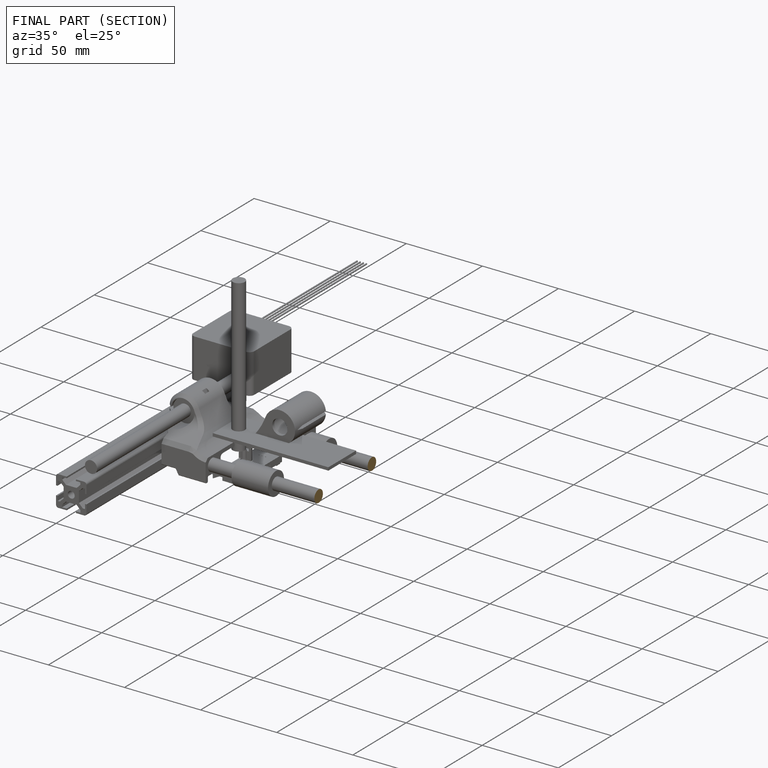
[diagram: finished part — half-section view (interior)]
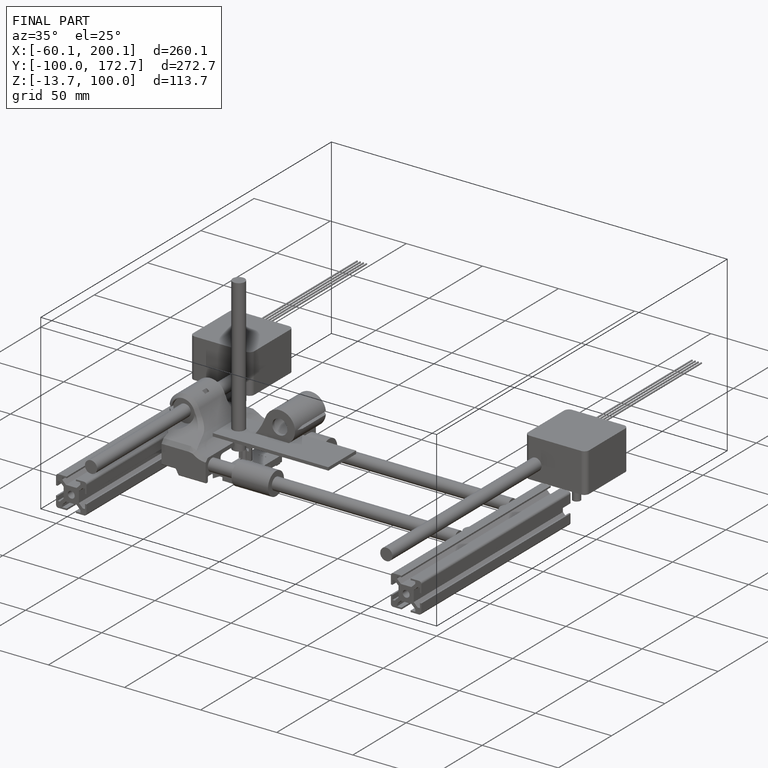
[diagram: finished part — iso view with bounding-box wireframe]
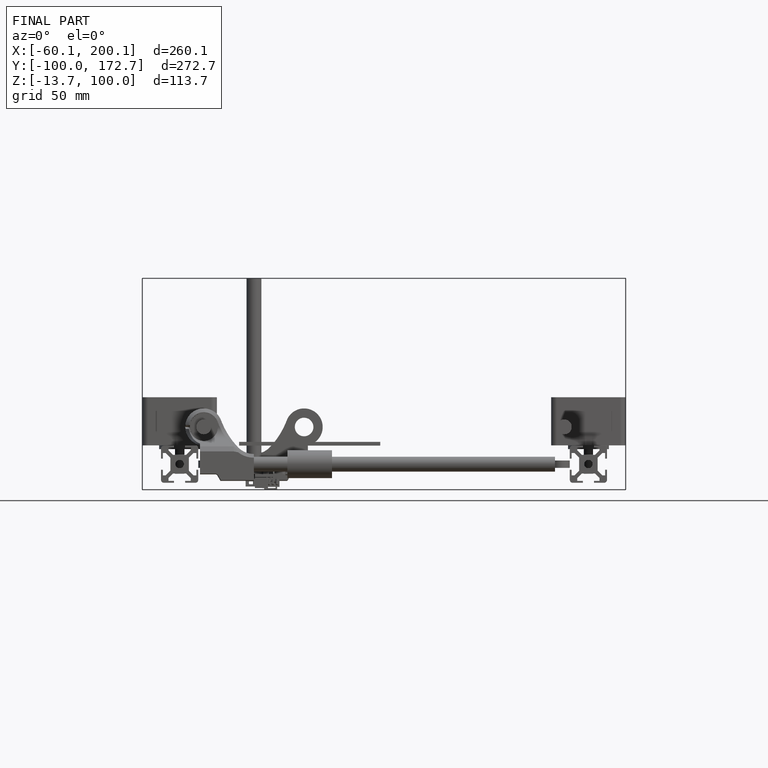
[diagram: finished part — front view with bounding-box wireframe]
